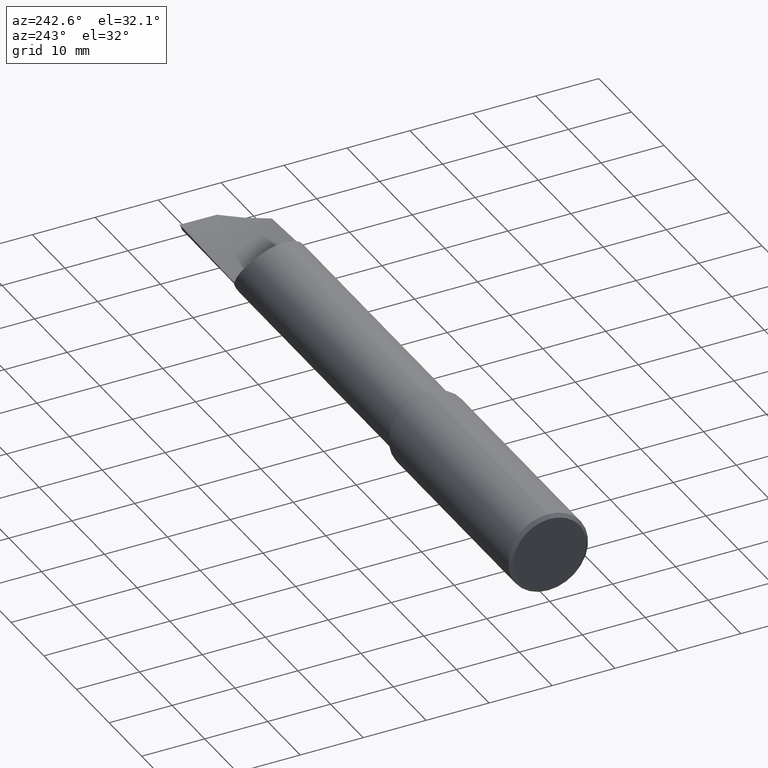
[diagram: clean part render]
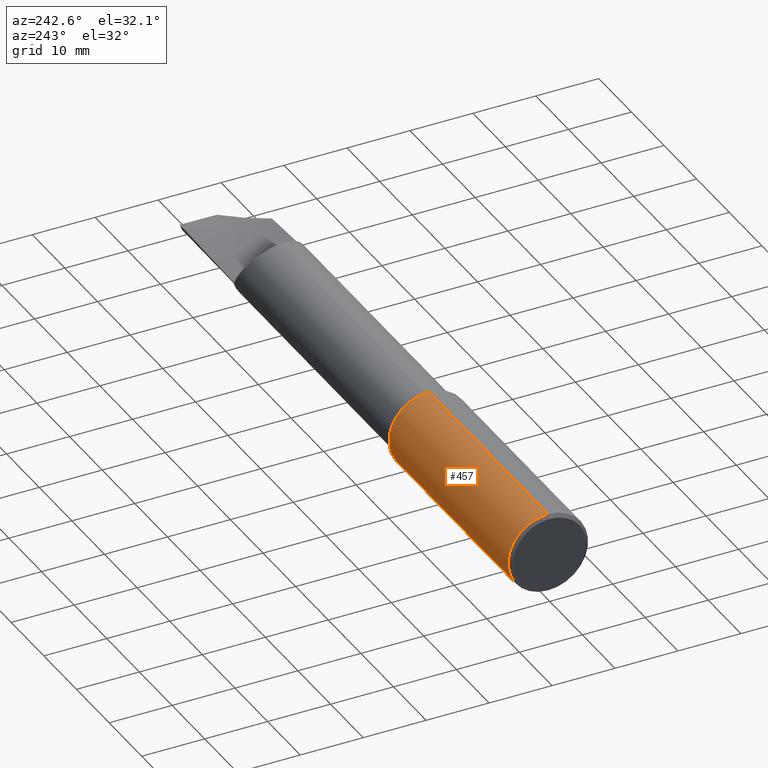
[diagram: same view with one face highlighted and labeled with its STEP entity id]
A machine part, auxiliary view. The second image highlights one B-rep face of the part: STEP entity #457.
In plain terms, the highlighted cylindrical surface (partial cylindrical patch) has radius 6.3462 mm, axis along (-1, -0, -0).
Its self-contained STEP definition (entity closure, byte-faithful):
#4 = CIRCLE ( 'NONE', #401, 0.2498499999999999888 ) ;
#25 = ORIENTED_EDGE ( 'NONE', *, *, #663, .F. ) ;
#47 = DIRECTION ( 'NONE',  ( -1.000000000000000000, -0.000000000000000000, -0.000000000000000000 ) ) ;
#74 = CARTESIAN_POINT ( 'NONE',  ( 0.02000000000000000042, 3.059780027669661931E-17, -0.2498499999999999888 ) ) ;
#86 = VERTEX_POINT ( 'NONE', #657 ) ;
#91 = EDGE_CURVE ( 'NONE', #86, #331, #499, .T. ) ;
#124 = DIRECTION ( 'NONE',  ( 0.000000000000000000, 0.000000000000000000, -1.000000000000000000 ) ) ;
#131 = AXIS2_PLACEMENT_3D ( 'NONE', #686, #232, #465 ) ;
#163 = CIRCLE ( 'NONE', #131, 0.2498499999999999888 ) ;
#185 = CARTESIAN_POINT ( 'NONE',  ( 1.459525038226269666, 0.000000000000000000, 0.2498499999999999888 ) ) ;
#193 = DIRECTION ( 'NONE',  ( -1.000000000000000000, -0.000000000000000000, -0.000000000000000000 ) ) ;
#201 = AXIS2_PLACEMENT_3D ( 'NONE', #202, #193, #660 ) ;
#202 = CARTESIAN_POINT ( 'NONE',  ( 0.000000000000000000, 0.000000000000000000, 0.000000000000000000 ) ) ;
#232 = DIRECTION ( 'NONE',  ( -1.000000000000000000, -0.000000000000000000, -0.000000000000000000 ) ) ;
#235 = ORIENTED_EDGE ( 'NONE', *, *, #91, .T. ) ;
#268 = EDGE_CURVE ( 'NONE', #361, #580, #620, .T. ) ;
#317 = FACE_OUTER_BOUND ( 'NONE', #529, .T. ) ;
#331 = VERTEX_POINT ( 'NONE', #74 ) ;
#336 = CARTESIAN_POINT ( 'NONE',  ( 1.459525038226269666, 0.000000000000000000, 0.000000000000000000 ) ) ;
#358 = ORIENTED_EDGE ( 'NONE', *, *, #268, .F. ) ;
#361 = VERTEX_POINT ( 'NONE', #185 ) ;
#366 = VECTOR ( 'NONE', #47, 39.37007874015748143 ) ;
#391 = CARTESIAN_POINT ( 'NONE',  ( 0.02000000000000000042, 0.000000000000000000, 0.2498499999999999888 ) ) ;
#394 = DIRECTION ( 'NONE',  ( 1.000000000000000000, 0.000000000000000000, 0.000000000000000000 ) ) ;
#401 = AXIS2_PLACEMENT_3D ( 'NONE', #336, #394, #124 ) ;
#457 = ADVANCED_FACE ( 'NONE', ( #317 ), #555, .T. ) ;
#465 = DIRECTION ( 'NONE',  ( 0.000000000000000000, 0.000000000000000000, 1.000000000000000000 ) ) ;
#487 = DIRECTION ( 'NONE',  ( -1.000000000000000000, -0.000000000000000000, -0.000000000000000000 ) ) ;
#499 = LINE ( 'NONE', #725, #713 ) ;
#529 = EDGE_LOOP ( 'NONE', ( #631, #235, #25, #358 ) ) ;
#555 = CYLINDRICAL_SURFACE ( 'NONE', #201, 0.2498499999999999888 ) ;
#568 = CARTESIAN_POINT ( 'NONE',  ( 0.000000000000000000, 0.000000000000000000, 0.2498499999999999888 ) ) ;
#580 = VERTEX_POINT ( 'NONE', #391 ) ;
#584 = EDGE_CURVE ( 'NONE', #86, #361, #4, .T. ) ;
#620 = LINE ( 'NONE', #568, #366 ) ;
#631 = ORIENTED_EDGE ( 'NONE', *, *, #584, .F. ) ;
#657 = CARTESIAN_POINT ( 'NONE',  ( 1.459525038226269666, 3.059780027669661931E-17, -0.2498499999999999888 ) ) ;
#660 = DIRECTION ( 'NONE',  ( 0.000000000000000000, 0.000000000000000000, 1.000000000000000000 ) ) ;
#663 = EDGE_CURVE ( 'NONE', #580, #331, #163, .T. ) ;
#686 = CARTESIAN_POINT ( 'NONE',  ( 0.02000000000000000042, 0.000000000000000000, 0.000000000000000000 ) ) ;
#713 = VECTOR ( 'NONE', #487, 39.37007874015748143 ) ;
#725 = CARTESIAN_POINT ( 'NONE',  ( 0.000000000000000000, 3.059780027669661931E-17, -0.2498499999999999888 ) ) ;